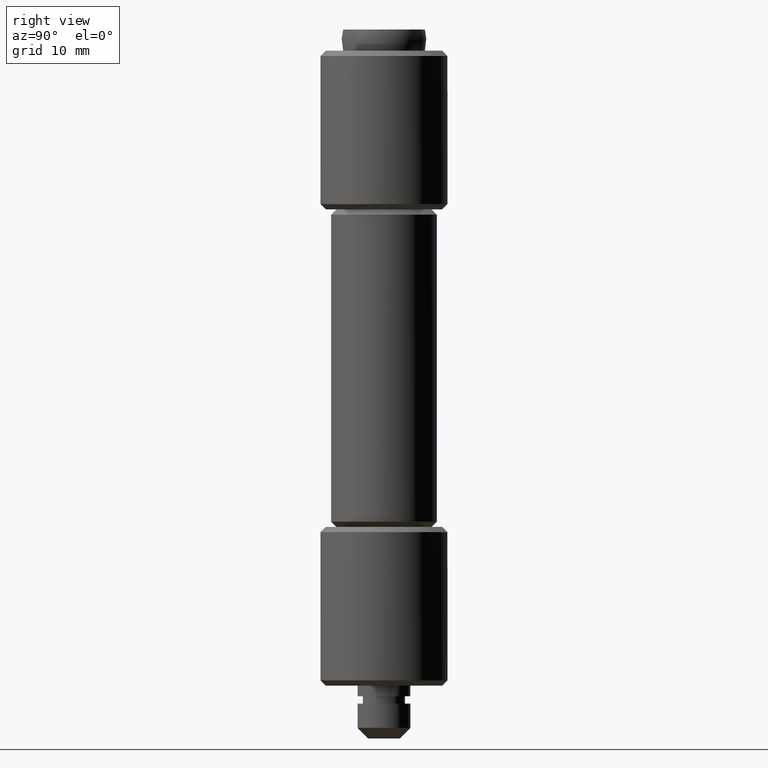
[diagram: clean part render]
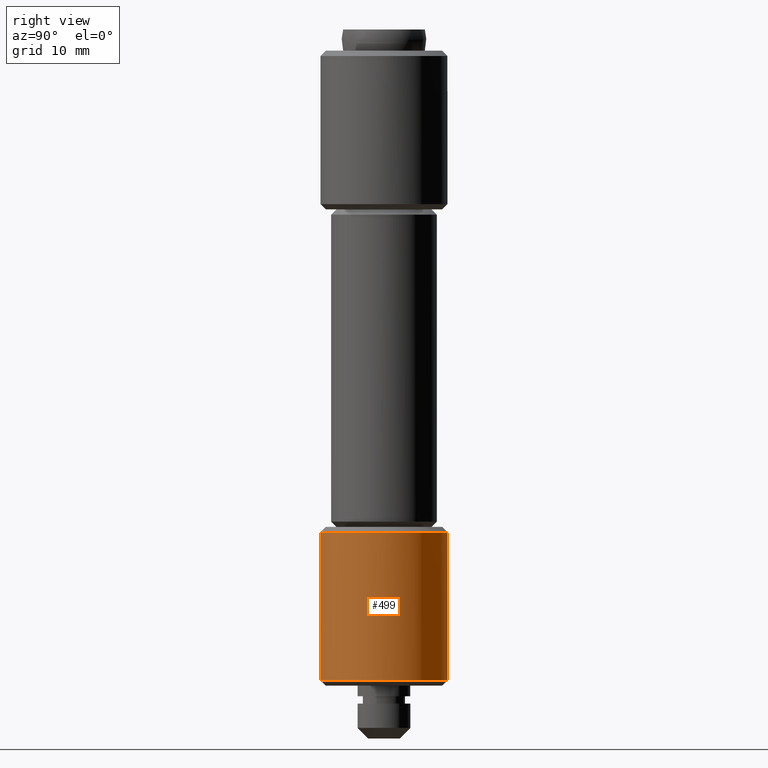
[diagram: same view with one face highlighted and labeled with its STEP entity id]
A machine part, right view. The second image highlights one B-rep face of the part: STEP entity #499.
In plain terms, the highlighted face is a freeform B-spline surface patch.
Its self-contained STEP definition (entity closure, byte-faithful):
#68=CARTESIAN_POINT('',(0.744758561494347,5.953598465213299,19.500000000000000));
#69=VERTEX_POINT('',#68);
#126=CARTESIAN_POINT('',(-0.052359213022021,-5.999771538384714,19.500000000000039));
#127=VERTEX_POINT('',#126);
#133=CARTESIAN_POINT('',(6.0,0.0,19.500000000000000));
#134=VERTEX_POINT('',#133);
#135=CARTESIAN_POINT('',(6.0,0.0,19.500000000000000));
#136=CARTESIAN_POINT('',(6.0,-6.0,19.500000000000004));
#137=CARTESIAN_POINT('',(0.0,-6.0,19.500000000000000));
#138=CARTESIAN_POINT('',(-0.026180104987775,-6.0,19.499999999999996));
#139=CARTESIAN_POINT('',(-0.052359213022021,-5.999771538384714,19.500000000000032));
#147=(BOUNDED_CURVE()B_SPLINE_CURVE(2,(#135,#136,#137,#138,#139),.UNSPECIFIED.,.F.,.U.)B_SPLINE_CURVE_WITH_KNOTS((3,2,3),(0.500000000000000,0.750000000000000,0.751539894338719),.UNSPECIFIED.)CURVE()GEOMETRIC_REPRESENTATION_ITEM()RATIONAL_B_SPLINE_CURVE((1.0,0.707106781186548,1.0,0.998195901562000,0.996414028091769))REPRESENTATION_ITEM(''));
#148=EDGE_CURVE('',#134,#127,#147,.T.);
#150=CARTESIAN_POINT('',(0.744758561494347,5.953598465213299,19.500000000000004));
#151=CARTESIAN_POINT('',(6.0,5.296200073825249,19.500000000000000));
#152=CARTESIAN_POINT('',(6.0,0.0,19.500000000000000));
#160=(BOUNDED_CURVE()B_SPLINE_CURVE(2,(#150,#151,#152),.UNSPECIFIED.,.F.,.U.)B_SPLINE_CURVE_WITH_KNOTS((3,3),(0.271473661255216,0.500000000000000),.UNSPECIFIED.)CURVE()GEOMETRIC_REPRESENTATION_ITEM()RATIONAL_B_SPLINE_CURVE((0.954005949807644,0.732264740245548,1.0))REPRESENTATION_ITEM(''));
#161=EDGE_CURVE('',#69,#134,#160,.T.);
#351=CARTESIAN_POINT('',(0.744768012531684,5.953597282946639,5.500000000000000));
#352=VERTEX_POINT('',#351);
#368=CARTESIAN_POINT('',(6.0,0.0,5.500000000000000));
#369=VERTEX_POINT('',#368);
#370=CARTESIAN_POINT('',(6.0,0.0,5.500000000000000));
#371=CARTESIAN_POINT('',(6.000000000000003,5.296191600806900,5.500000000000000));
#372=CARTESIAN_POINT('',(0.744768012531684,5.953597282946640,5.500000000000001));
#380=(BOUNDED_CURVE()B_SPLINE_CURVE(2,(#370,#371,#372),.UNSPECIFIED.,.F.,.U.)B_SPLINE_CURVE_WITH_KNOTS((3,3),(0.500000000000000,0.728526071026314),.UNSPECIFIED.)CURVE()GEOMETRIC_REPRESENTATION_ITEM()RATIONAL_B_SPLINE_CURVE((1.0,0.732265053897245,0.954005430268926))REPRESENTATION_ITEM(''));
#381=EDGE_CURVE('',#369,#352,#380,.T.);
#383=CARTESIAN_POINT('',(-0.052359213044773,-5.999771538384551,5.500000000000000));
#384=VERTEX_POINT('',#383);
#385=CARTESIAN_POINT('',(-0.052359213044773,-5.999771538384551,5.500000000000001));
#386=CARTESIAN_POINT('',(-0.026180104978742,-6.0,5.500000000000000));
#387=CARTESIAN_POINT('',(0.0,-6.0,5.500000000000000));
#388=CARTESIAN_POINT('',(6.0,-6.0,5.500000000000001));
#389=CARTESIAN_POINT('',(6.0,0.0,5.500000000000000));
#397=(BOUNDED_CURVE()B_SPLINE_CURVE(2,(#385,#386,#387,#388,#389),.UNSPECIFIED.,.F.,.U.)B_SPLINE_CURVE_WITH_KNOTS((3,2,3),(0.248460105661811,0.250000000000000,0.500000000000000),.UNSPECIFIED.)CURVE()GEOMETRIC_REPRESENTATION_ITEM()RATIONAL_B_SPLINE_CURVE((0.996414028092996,0.998195901562621,1.0,0.707106781186548,1.0))REPRESENTATION_ITEM(''));
#398=EDGE_CURVE('',#384,#369,#397,.T.);
#461=CARTESIAN_POINT('',(0.660702988506187,5.964113436103609,19.850000000000005));
#462=CARTESIAN_POINT('',(0.702631995100168,5.958868307583474,19.849999999999998));
#463=CARTESIAN_POINT('',(6.046396983014668,5.290387548799326,19.850000000000009));
#464=CARTESIAN_POINT('',(5.999771538385026,-0.052359212990243,19.850000000000009));
#465=CARTESIAN_POINT('',(5.947412325394783,-6.052130751375269,19.850000000000001));
#466=CARTESIAN_POINT('',(-0.092972838205489,-5.999417108647267,19.850000000000005));
#467=CARTESIAN_POINT('',(-0.133359347750879,-5.999064660917934,19.850000000000001));
#468=CARTESIAN_POINT('',(0.660702988506187,5.964113436103609,5.141250000000000));
#469=CARTESIAN_POINT('',(0.702631995100168,5.958868307583474,5.141249999999999));
#470=CARTESIAN_POINT('',(6.046396983014668,5.290387548799326,5.141250000000000));
#471=CARTESIAN_POINT('',(5.999771538385026,-0.052359212990243,5.141249999999999));
#472=CARTESIAN_POINT('',(5.947412325394783,-6.052130751375269,5.141249999999999));
#473=CARTESIAN_POINT('',(-0.092972838205489,-5.999417108647267,5.141249999999998));
#474=CARTESIAN_POINT('',(-0.133359347750879,-5.999064660917934,5.141249999999998));
#482=(BOUNDED_SURFACE()B_SPLINE_SURFACE(2,1,((#461,#468),(#462,#469),(#463,#470),(#464,#471),(#465,#472),(#466,#473),(#467,#474)),.UNSPECIFIED.,.F.,.F.,.U.)B_SPLINE_SURFACE_WITH_KNOTS((3,1,2,1,3),(2,2),(0.0,0.095445533741956,9.241280990939892,19.182406487894170,19.277841343984541),(0.0,14.708750000000011),.UNSPECIFIED.)GEOMETRIC_REPRESENTATION_ITEM()RATIONAL_B_SPLINE_SURFACE(((0.961610431080663,0.961610431080663),(0.959248274635662,0.959248274635662),(0.730538238691624,0.730538238691624),(1.0,1.0),(0.707106781186548,0.707106781186548),(1.002811776412628,1.002811776412628),(1.005623552825256,1.005623552825256)))REPRESENTATION_ITEM('')SURFACE());
#483=ORIENTED_EDGE('',*,*,#161,.T.);
#484=ORIENTED_EDGE('',*,*,#148,.T.);
#485=CARTESIAN_POINT('',(-0.052359213022021,-5.999771538384714,19.500000000000039));
#486=CARTESIAN_POINT('',(-0.052359213044773,-5.999771538384551,5.500000000000000));
#487=QUASI_UNIFORM_CURVE('',1,(#485,#486),.UNSPECIFIED.,.F.,.U.);
#488=EDGE_CURVE('',#127,#384,#487,.T.);
#489=ORIENTED_EDGE('',*,*,#488,.T.);
#490=ORIENTED_EDGE('',*,*,#398,.T.);
#491=ORIENTED_EDGE('',*,*,#381,.T.);
#492=CARTESIAN_POINT('',(0.744758561494347,5.953598465213299,19.500000000000000));
#493=CARTESIAN_POINT('',(0.744768012531684,5.953597282946639,5.500000000000000));
#494=QUASI_UNIFORM_CURVE('',1,(#492,#493),.UNSPECIFIED.,.F.,.U.);
#495=EDGE_CURVE('',#69,#352,#494,.T.);
#496=ORIENTED_EDGE('',*,*,#495,.F.);
#497=EDGE_LOOP('',(#483,#484,#489,#490,#491,#496));
#498=FACE_OUTER_BOUND('',#497,.T.);
#499=ADVANCED_FACE('',(#498),#482,.T.);